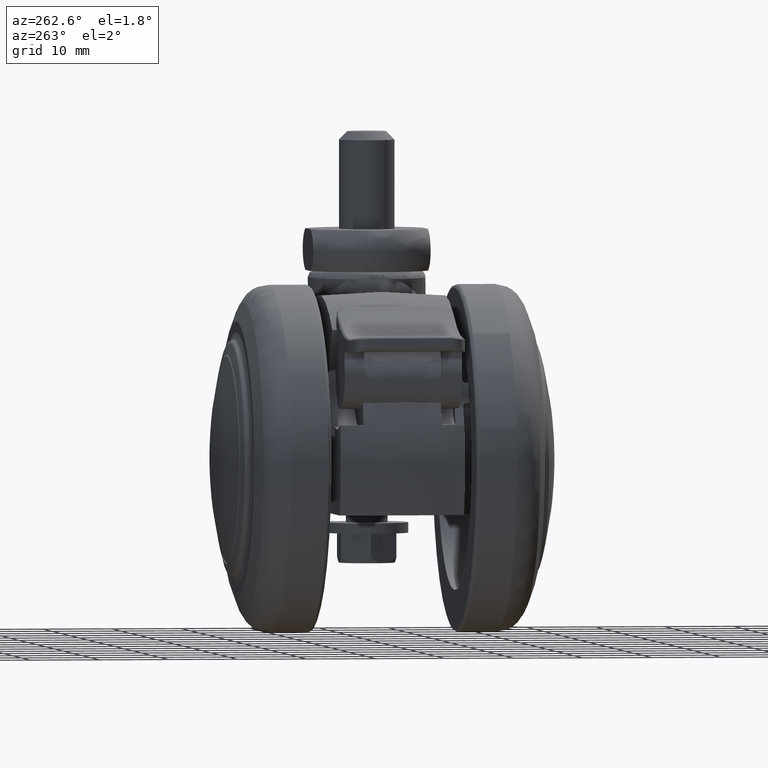
[diagram: clean part render]
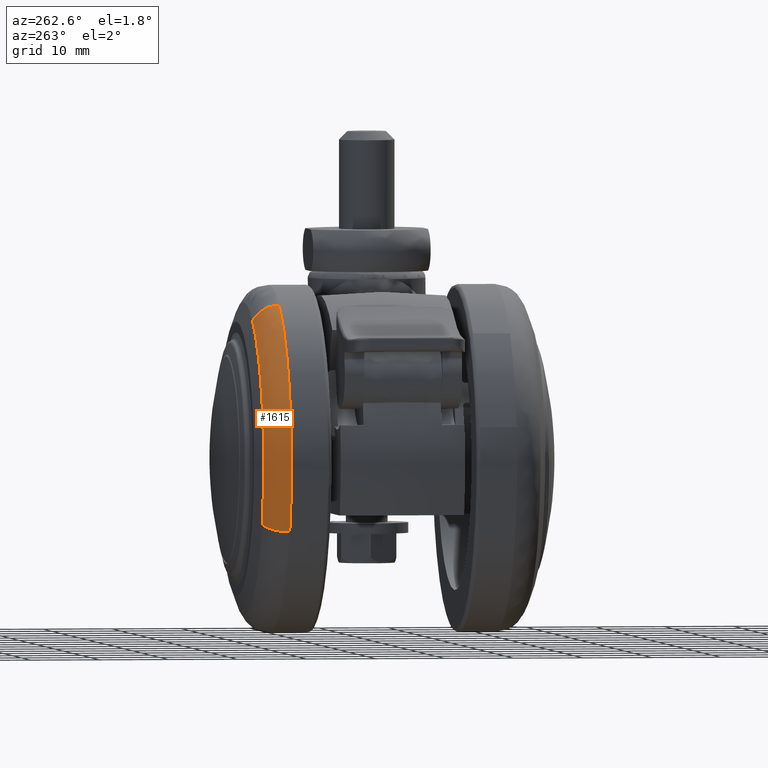
[diagram: same view with one face highlighted and labeled with its STEP entity id]
A machine part, auxiliary view. The second image highlights one B-rep face of the part: STEP entity #1615.
In plain terms, the highlighted face is a freeform B-spline surface patch.
Its self-contained STEP definition (entity closure, byte-faithful):
#549=CARTESIAN_POINT('',(11.084080773140300,-16.344551000042120,22.408550899478119));
#550=VERTEX_POINT('',#549);
#564=CARTESIAN_POINT('',(23.005796184146028,-16.344551000043619,-9.784341670931774));
#565=VERTEX_POINT('',#564);
#566=CARTESIAN_POINT('',(23.005796184146028,-16.344551000043623,-9.784341670931774));
#567=CARTESIAN_POINT('',(24.999999999999996,-16.344550999999996,-5.095395998329954));
#568=CARTESIAN_POINT('',(25.0,-16.344550999999999,1.789254E-015));
#569=CARTESIAN_POINT('',(24.999999999999993,-16.344550999999992,15.525233301881846));
#570=CARTESIAN_POINT('',(11.084080773140304,-16.344551000042113,22.408550899478112));
#578=(BOUNDED_CURVE()B_SPLINE_CURVE(2,(#566,#567,#568,#569,#570),.UNSPECIFIED.,.F.,.U.)B_SPLINE_CURVE_WITH_KNOTS((3,2,3),(0.183550134662986,0.250000000000000,0.424637790836528),.UNSPECIFIED.)CURVE()GEOMETRIC_REPRESENTATION_ITEM()RATIONAL_B_SPLINE_CURVE((0.885683713610757,0.922149140206886,1.0,0.795399101261676,0.876646594193984))REPRESENTATION_ITEM(''));
#579=EDGE_CURVE('',#565,#550,#578,.T.);
#1495=CARTESIAN_POINT('',(9.975672701367396,-20.052650238579410,20.167695820492280));
#1496=VERTEX_POINT('',#1495);
#1512=CARTESIAN_POINT('',(11.084080773140304,-16.344551000042120,22.408550899478119));
#1513=CARTESIAN_POINT('',(11.084080773115071,-19.041350438878307,22.408550899427233));
#1514=CARTESIAN_POINT('',(9.975672701367396,-20.052650238579417,20.167695820492280));
#1522=(BOUNDED_CURVE()B_SPLINE_CURVE(2,(#1512,#1513,#1514),.UNSPECIFIED.,.F.,.U.)B_SPLINE_CURVE_WITH_KNOTS((3,3),(-1.660962679255064,-0.332907182650845),.UNSPECIFIED.)CURVE()GEOMETRIC_REPRESENTATION_ITEM()RATIONAL_B_SPLINE_CURVE((0.881286030655663,0.731300247472585,0.882677082816276))REPRESENTATION_ITEM(''));
#1523=EDGE_CURVE('',#550,#1496,#1522,.T.);
#1530=CARTESIAN_POINT('',(20.705216576002002,-20.052650239026459,-8.805907508248644));
#1531=VERTEX_POINT('',#1530);
#1532=CARTESIAN_POINT('',(23.005796184146021,-16.344551000043616,-9.784341670931774));
#1533=CARTESIAN_POINT('',(23.005796184092617,-19.041350440613130,-9.784341670907034));
#1534=CARTESIAN_POINT('',(20.705216576002005,-20.052650239026459,-8.805907508248644));
#1542=(BOUNDED_CURVE()B_SPLINE_CURVE(2,(#1532,#1533,#1534),.UNSPECIFIED.,.F.,.U.)B_SPLINE_CURVE_WITH_KNOTS((3,3),(-1.660962679254172,-0.332907181942257),.UNSPECIFIED.)CURVE()GEOMETRIC_REPRESENTATION_ITEM()RATIONAL_B_SPLINE_CURVE((0.901566036680910,0.748128805780798,0.902989099665517))REPRESENTATION_ITEM(''));
#1543=EDGE_CURVE('',#565,#1531,#1542,.T.);
#1578=CARTESIAN_POINT('',(23.000148017180042,-16.123046036006293,-9.781939511275404));
#1579=CARTESIAN_POINT('',(32.237756243554308,-16.123046036006301,11.938329386975598));
#1580=CARTESIAN_POINT('',(11.081359513750742,-16.123046036006304,22.403049362563308));
#1581=CARTESIAN_POINT('',(23.154641985636022,-19.150125951154898,-9.847645638608343));
#1582=CARTESIAN_POINT('',(32.454300019379694,-19.150125951154905,12.018520170197984));
#1583=CARTESIAN_POINT('',(11.155793956776414,-19.150125951154898,22.553532568104089));
#1584=CARTESIAN_POINT('',(20.514454146454806,-20.129907270533494,-8.724776441332542));
#1585=CARTESIAN_POINT('',(28.753726791192452,-20.129907270533490,10.648118899558806));
#1586=CARTESIAN_POINT('',(9.883764289491394,-20.129907270533486,19.981885705508457));
#1594=(BOUNDED_SURFACE()B_SPLINE_SURFACE(2,2,((#1578,#1581,#1584),(#1579,#1582,#1585),(#1580,#1583,#1586)),.UNSPECIFIED.,.F.,.F.,.U.)B_SPLINE_SURFACE_WITH_KNOTS((3,3),(3,3),(0.0,39.743829039994672),(0.0,5.378328550440979),.UNSPECIFIED.)GEOMETRIC_REPRESENTATION_ITEM()RATIONAL_B_SPLINE_SURFACE(((0.917663624678966,0.731960140785885,0.919228841572620),(0.659637269971533,0.526149425575076,0.660762383107629),(0.897021516302371,0.715495283569020,0.898551524895421)))REPRESENTATION_ITEM('')SURFACE());
#1595=CARTESIAN_POINT('',(20.705216576002002,-20.052650239026466,-8.805907508248644));
#1596=CARTESIAN_POINT('',(22.500000010546600,-20.052650239281650,-4.585856400686761));
#1597=CARTESIAN_POINT('',(22.500000010546600,-20.052650239281650,1.789254E-015));
#1598=CARTESIAN_POINT('',(22.500000010546596,-20.052650239281643,13.972709978095425));
#1599=CARTESIAN_POINT('',(9.975672701367396,-20.052650238579414,20.167695820492277));
#1607=(BOUNDED_CURVE()B_SPLINE_CURVE(2,(#1595,#1596,#1597,#1598,#1599),.UNSPECIFIED.,.F.,.U.)B_SPLINE_CURVE_WITH_KNOTS((3,2,3),(0.183550134662448,0.250000000000000,0.424637790835059),.UNSPECIFIED.)CURVE()GEOMETRIC_REPRESENTATION_ITEM()RATIONAL_B_SPLINE_CURVE((0.885683713610167,0.922149140206256,1.0,0.795399101263397,0.876646594192617))REPRESENTATION_ITEM(''));
#1608=EDGE_CURVE('',#1531,#1496,#1607,.T.);
#1609=ORIENTED_EDGE('',*,*,#1608,.F.);
#1610=ORIENTED_EDGE('',*,*,#1543,.F.);
#1611=ORIENTED_EDGE('',*,*,#579,.T.);
#1612=ORIENTED_EDGE('',*,*,#1523,.T.);
#1613=EDGE_LOOP('',(#1609,#1610,#1611,#1612));
#1614=FACE_OUTER_BOUND('',#1613,.T.);
#1615=ADVANCED_FACE('',(#1614),#1594,.T.);